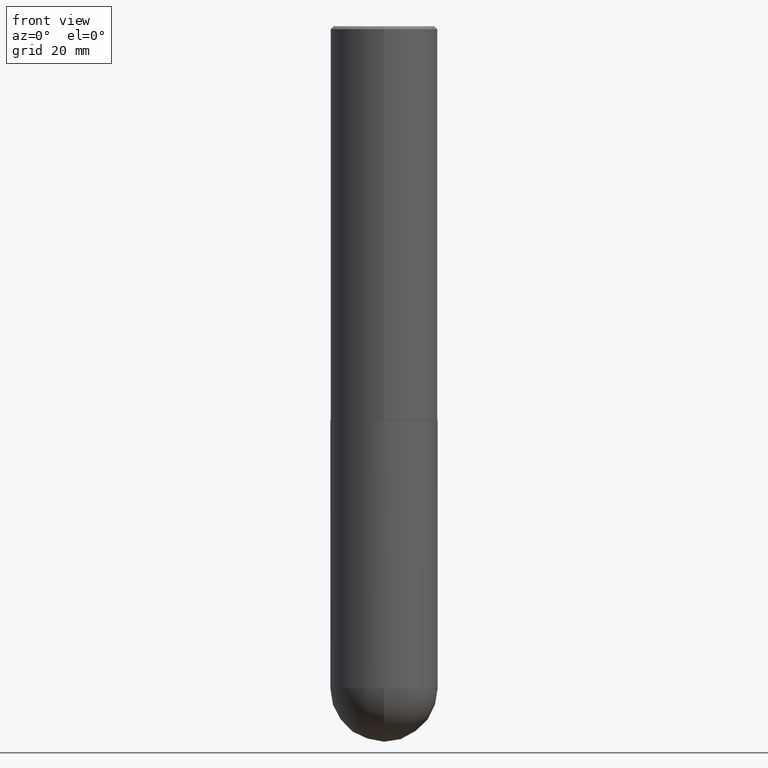
[diagram: clean part render]
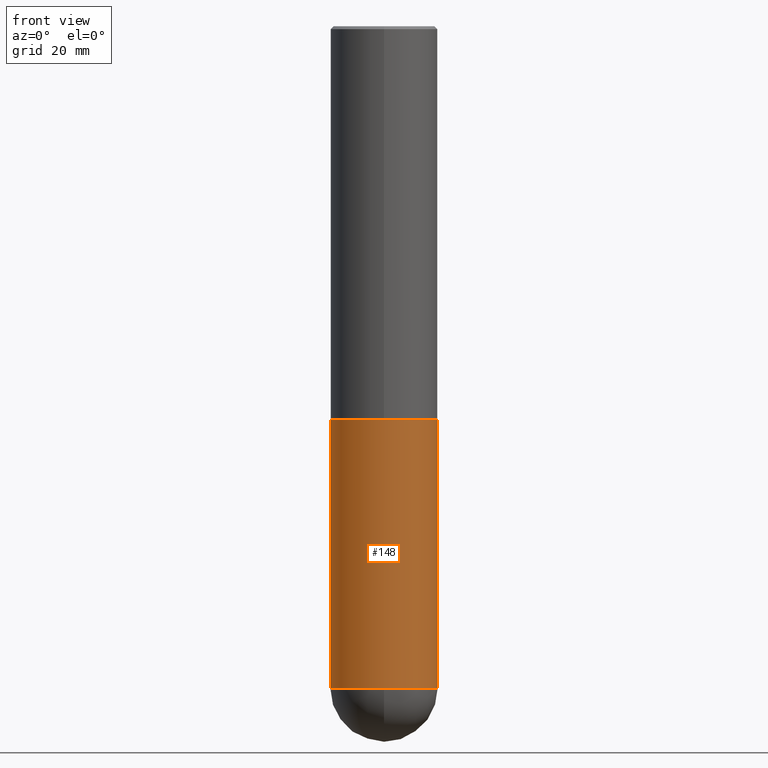
[diagram: same view with one face highlighted and labeled with its STEP entity id]
A machine part, front view. The second image highlights one B-rep face of the part: STEP entity #148.
In plain terms, the highlighted cylindrical surface (partial cylindrical patch) has radius 9.525 mm, axis along (-0, 0, 1).
Its self-contained STEP definition (entity closure, byte-faithful):
#2 = EDGE_CURVE ( 'NONE', #12, #28, #357, .T. ) ;
#12 = VERTEX_POINT ( 'NONE', #200 ) ;
#23 = CARTESIAN_POINT ( 'NONE',  ( 0.000000000000000000, 0.000000000000000000, 0.000000000000000000 ) ) ;
#24 = CARTESIAN_POINT ( 'NONE',  ( -0.3750000000000000555, -1.021030217788372352E-14, -2.750000000000000000 ) ) ;
#26 = CIRCLE ( 'NONE', #136, 0.3750000000000001110 ) ;
#28 = VERTEX_POINT ( 'NONE', #230 ) ;
#37 = ORIENTED_EDGE ( 'NONE', *, *, #243, .T. ) ;
#51 = CARTESIAN_POINT ( 'NONE',  ( 1.131029322860625676E-28, -1.614810119214955014E-14, -4.625000000000000888 ) ) ;
#52 = CARTESIAN_POINT ( 'NONE',  ( 1.131029322860625676E-28, -1.614810119214955014E-14, -4.625000000000000888 ) ) ;
#53 = ORIENTED_EDGE ( 'NONE', *, *, #2, .T. ) ;
#61 = CARTESIAN_POINT ( 'NONE',  ( -2.664535259100265651E-15, -0.3750000000000165978, -4.624999999999999112 ) ) ;
#76 = CARTESIAN_POINT ( 'NONE',  ( 0.3750000000000001110, -2.618611004132350411E-15, 1.828566290923476483E-29 ) ) ;
#78 = CARTESIAN_POINT ( 'NONE',  ( -0.3750000000000001110, -1.021030217788372667E-14, -4.625000000000000888 ) ) ;
#81 = AXIS2_PLACEMENT_3D ( 'NONE', #23, #88, #244 ) ;
#82 = AXIS2_PLACEMENT_3D ( 'NONE', #51, #182, #183 ) ;
#88 = DIRECTION ( 'NONE',  ( -2.445468806185136597E-29, 3.491481338843145583E-15, 1.000000000000000000 ) ) ;
#99 = VERTEX_POINT ( 'NONE', #24 ) ;
#108 = ORIENTED_EDGE ( 'NONE', *, *, #255, .T. ) ;
#116 = DIRECTION ( 'NONE',  ( -2.445468806185136597E-29, 3.491481338843145583E-15, 1.000000000000000000 ) ) ;
#121 = VECTOR ( 'NONE', #201, 39.37007874015748143 ) ;
#136 = AXIS2_PLACEMENT_3D ( 'NONE', #52, #116, #240 ) ;
#148 = ADVANCED_FACE ( 'NONE', ( #371 ), #248, .T. ) ;
#156 = EDGE_CURVE ( 'NONE', #99, #28, #281, .T. ) ;
#182 = DIRECTION ( 'NONE',  ( -2.445468806185136597E-29, 3.491481338843145583E-15, 1.000000000000000000 ) ) ;
#183 = DIRECTION ( 'NONE',  ( 1.000000000000000000, -6.982962677686265922E-15, 0.000000000000000000 ) ) ;
#185 = VERTEX_POINT ( 'NONE', #78 ) ;
#200 = CARTESIAN_POINT ( 'NONE',  ( 0.3750000000000001110, -1.549344844111645238E-14, -4.625000000000000888 ) ) ;
#201 = DIRECTION ( 'NONE',  ( -2.445468806185136877E-29, 3.491481338843145188E-15, 1.000000000000000000 ) ) ;
#207 = DIRECTION ( 'NONE',  ( -2.445468806185136877E-29, 3.491481338843145188E-15, 1.000000000000000000 ) ) ;
#230 = CARTESIAN_POINT ( 'NONE',  ( 0.3750000000000000555, -1.222018468595100145E-14, -2.750000000000000000 ) ) ;
#240 = DIRECTION ( 'NONE',  ( 1.000000000000000000, -6.982962677686265922E-15, 0.000000000000000000 ) ) ;
#243 = EDGE_CURVE ( 'NONE', #185, #406, #26, .T. ) ;
#244 = DIRECTION ( 'NONE',  ( 1.000000000000000000, -6.982962677686265922E-15, 4.876176775795935793E-29 ) ) ;
#248 = CYLINDRICAL_SURFACE ( 'NONE', #81, 0.3750000000000001110 ) ;
#253 = ORIENTED_EDGE ( 'NONE', *, *, #156, .F. ) ;
#255 = EDGE_CURVE ( 'NONE', #406, #12, #325, .T. ) ;
#256 = CARTESIAN_POINT ( 'NONE',  ( -0.3750000000000001110, 2.664535259100376486E-15, -1.844600658845590159E-29 ) ) ;
#281 = CIRCLE ( 'NONE', #389, 0.3750000000000000555 ) ;
#307 = CARTESIAN_POINT ( 'NONE',  ( 6.725039217009124520E-29, -9.601573681818649859E-15, -2.750000000000000000 ) ) ;
#316 = EDGE_LOOP ( 'NONE', ( #379, #37, #108, #53, #253 ) ) ;
#325 = CIRCLE ( 'NONE', #82, 0.3750000000000001110 ) ;
#340 = DIRECTION ( 'NONE',  ( 1.000000000000000000, -6.982962677686266711E-15, 0.000000000000000000 ) ) ;
#341 = EDGE_CURVE ( 'NONE', #185, #99, #383, .T. ) ;
#357 = LINE ( 'NONE', #76, #375 ) ;
#371 = FACE_OUTER_BOUND ( 'NONE', #316, .T. ) ;
#373 = DIRECTION ( 'NONE',  ( -2.445468806185136597E-29, 3.491481338843145583E-15, 1.000000000000000000 ) ) ;
#375 = VECTOR ( 'NONE', #207, 39.37007874015748143 ) ;
#379 = ORIENTED_EDGE ( 'NONE', *, *, #341, .F. ) ;
#383 = LINE ( 'NONE', #256, #121 ) ;
#389 = AXIS2_PLACEMENT_3D ( 'NONE', #307, #373, #340 ) ;
#406 = VERTEX_POINT ( 'NONE', #61 ) ;